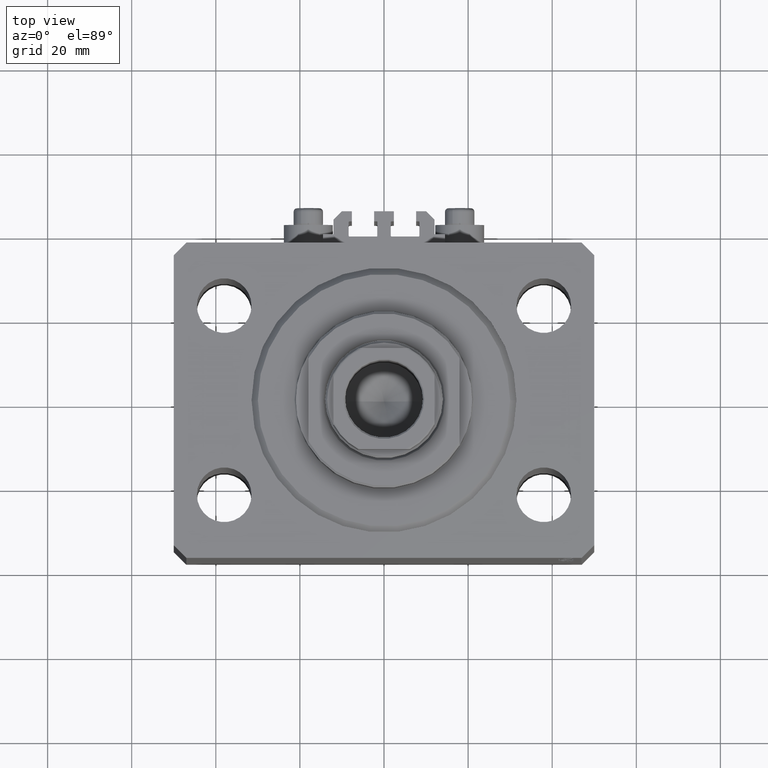
[diagram: clean part render]
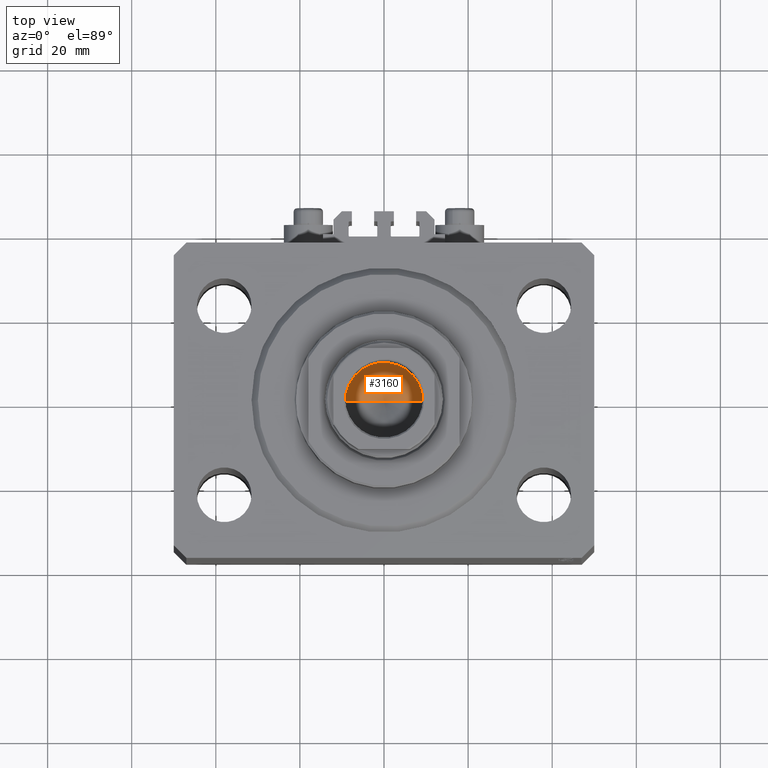
[diagram: same view with one face highlighted and labeled with its STEP entity id]
A machine part, top view. The second image highlights one B-rep face of the part: STEP entity #3160.
In plain terms, the highlighted conical surface has half-angle 59 deg.
Its self-contained STEP definition (entity closure, byte-faithful):
#189 = DIRECTION ( 'NONE',  ( -0.000000000000000000, -0.000000000000000000, 1.000000000000000000 ) ) ;
#1285 = CARTESIAN_POINT ( 'NONE',  ( -9.249999999999994671, 1.132798289211300909E-15, 68.00000000000000000 ) ) ;
#1510 = LINE ( 'NONE', #1285, #10949 ) ;
#3160 = ADVANCED_FACE ( 'NONE', ( #25364 ), #32130, .F. ) ;
#3339 = ORIENTED_EDGE ( 'NONE', *, *, #13347, .T. ) ;
#4412 = EDGE_CURVE ( 'NONE', #4617, #22849, #19916, .T. ) ;
#4617 = VERTEX_POINT ( 'NONE', #25173 ) ;
#6325 = CIRCLE ( 'NONE', #13994, 9.249999999999994671 ) ;
#10949 = VECTOR ( 'NONE', #15913, 1000.000000000000000 ) ;
#11438 = DIRECTION ( 'NONE',  ( 1.000000000000000000, 0.000000000000000000, 0.000000000000000000 ) ) ;
#13347 = EDGE_CURVE ( 'NONE', #22849, #16751, #6325, .T. ) ;
#13994 = AXIS2_PLACEMENT_3D ( 'NONE', #28916, #43495, #39939 ) ;
#14886 = EDGE_CURVE ( 'NONE', #4617, #16751, #1510, .T. ) ;
#15913 = DIRECTION ( 'NONE',  ( -0.8571673007021117785, 1.049727191138617956E-16, 0.5150380749100550437 ) ) ;
#16751 = VERTEX_POINT ( 'NONE', #17014 ) ;
#17014 = CARTESIAN_POINT ( 'NONE',  ( -9.249999999999994671, 1.132798289211300909E-15, 68.00000000000000000 ) ) ;
#17678 = ORIENTED_EDGE ( 'NONE', *, *, #4412, .T. ) ;
#19916 = LINE ( 'NONE', #45045, #26813 ) ;
#22849 = VERTEX_POINT ( 'NONE', #33201 ) ;
#25173 = CARTESIAN_POINT ( 'NONE',  ( -1.046994375366439223E-14, 0.000000000000000000, 62.44203927399506426 ) ) ;
#25364 = FACE_OUTER_BOUND ( 'NONE', #27529, .T. ) ;
#25601 = CARTESIAN_POINT ( 'NONE',  ( 0.000000000000000000, 0.000000000000000000, 68.00000000000000000 ) ) ;
#26813 = VECTOR ( 'NONE', #26862, 1000.000000000000000 ) ;
#26862 = DIRECTION ( 'NONE',  ( 0.8571673007021117785, 0.000000000000000000, 0.5150380749100550437 ) ) ;
#27529 = EDGE_LOOP ( 'NONE', ( #37042, #17678, #3339 ) ) ;
#28916 = CARTESIAN_POINT ( 'NONE',  ( 0.000000000000000000, 0.000000000000000000, 68.00000000000000000 ) ) ;
#30598 = AXIS2_PLACEMENT_3D ( 'NONE', #25601, #189, #11438 ) ;
#32130 = CONICAL_SURFACE ( 'NONE', #30598, 9.249999999999994671, 1.029744258676653423 ) ;
#33201 = CARTESIAN_POINT ( 'NONE',  ( 9.249999999999994671, 0.000000000000000000, 68.00000000000000000 ) ) ;
#37042 = ORIENTED_EDGE ( 'NONE', *, *, #14886, .F. ) ;
#39939 = DIRECTION ( 'NONE',  ( 1.000000000000000000, 0.000000000000000000, 0.000000000000000000 ) ) ;
#43495 = DIRECTION ( 'NONE',  ( -0.000000000000000000, -0.000000000000000000, 1.000000000000000000 ) ) ;
#45045 = CARTESIAN_POINT ( 'NONE',  ( 9.249999999999994671, 0.000000000000000000, 68.00000000000000000 ) ) ;